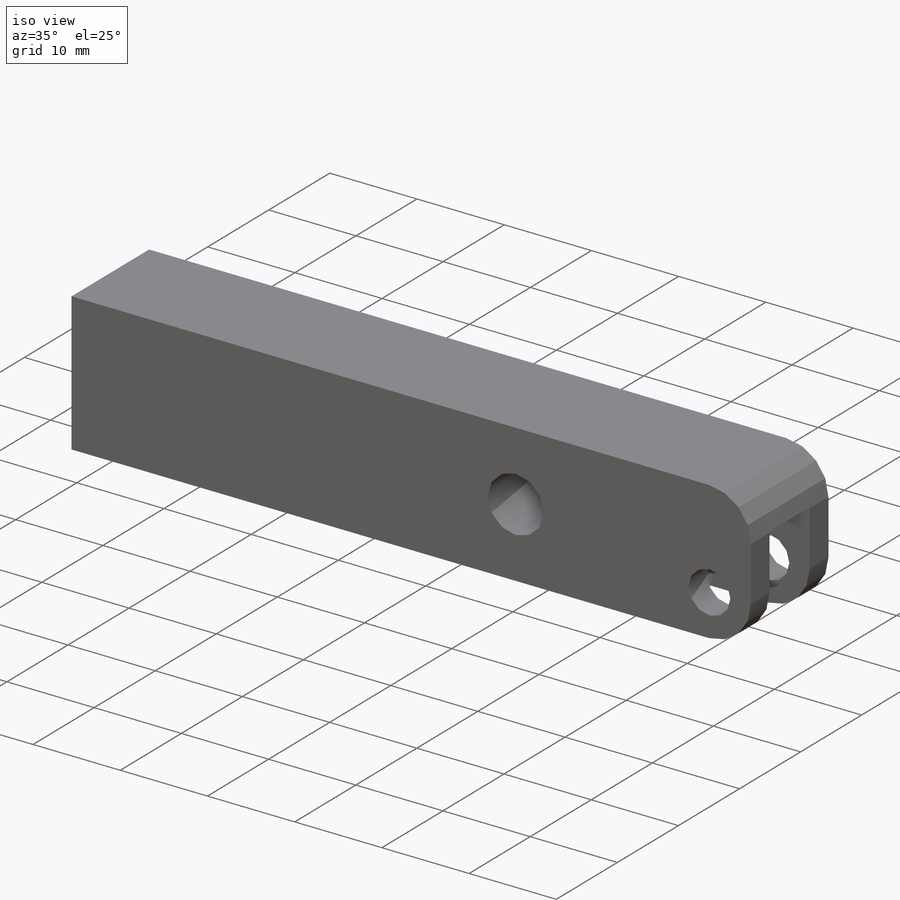
[diagram: iso view]
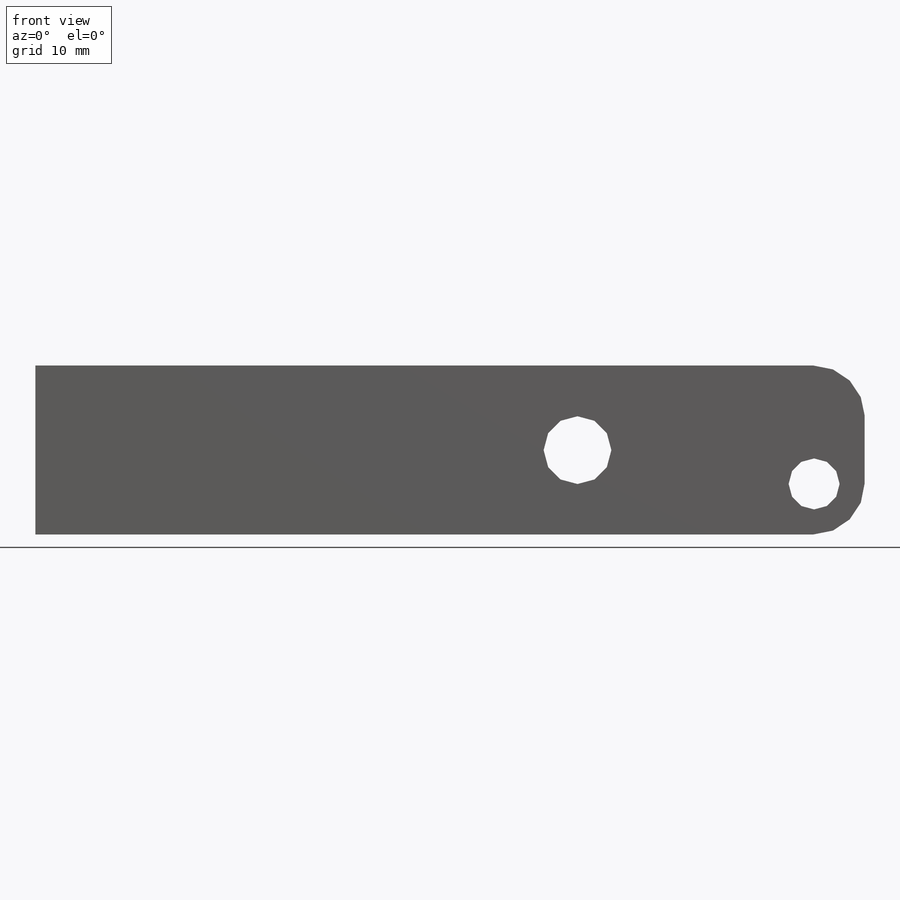
[diagram: front view]
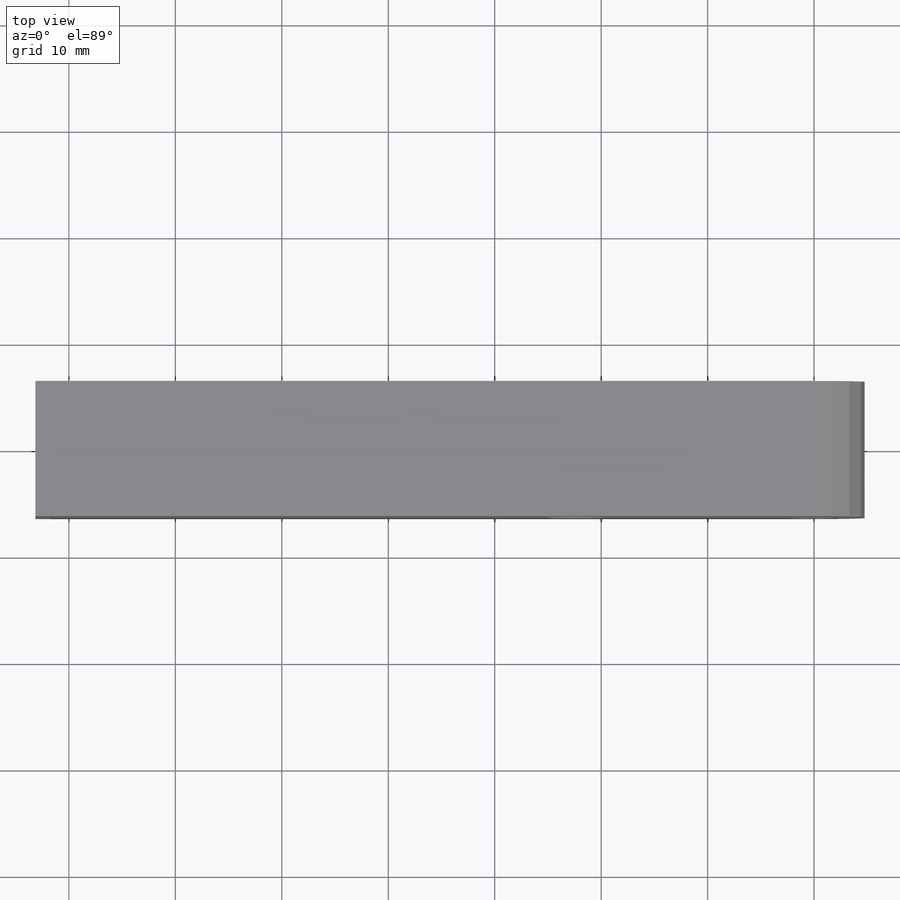
[diagram: top view]
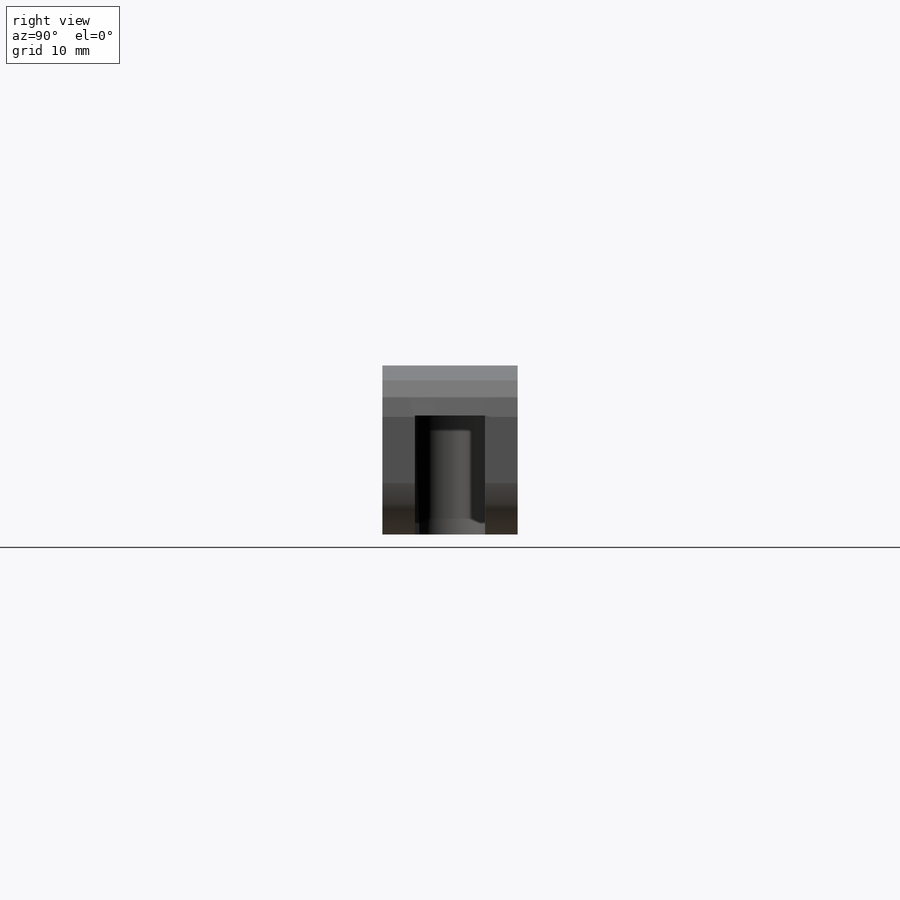
[diagram: right view]
SOLIDWORKS PART (.sldprt)
format: sldprt  version: not decoded by parser v0  size: 171,520 bytes
history: native  units: mm
features: sketch x2, material x1, extrude x1, cut_extrude x1, fillet x1 (+13 scaffold rows collapsed)
feature tree (19):
  scaffold x13  (default folders/planes/origin — collapsed)
  material  "Alloy Steel"
  sketch  "Sketch11"  dims[c1.D1=4.7879mm c1.D6=6.3627mm c1.D2=4.7498mm c1.D3=4.7498mm c1.D4=15.875mm c1.D5=50.8mm c2.D6=55.5498mm c2.D7=22.225mm c2.D8=3.175mm c2.D3=73.152mm c2.D5=22.225mm c3.D7=4.7498mm]
  extrude  "Extrude3"  Depth=12.7mm
  sketch  "Sketch12"  dims[c1.D3=3.302mm c1.D1=6.604mm c1.D2=3.048mm c2.D3=14.478mm]
  cut_extrude  "Cut-Extrude1"  Depth=11.176mm
  fillet  "Fillet1"  Radius=4.826mm
decode coverage: 5 of 5 modeling features carry decoded parameters
note: suppression state not decoded; provenance and decode notes live in map.json
